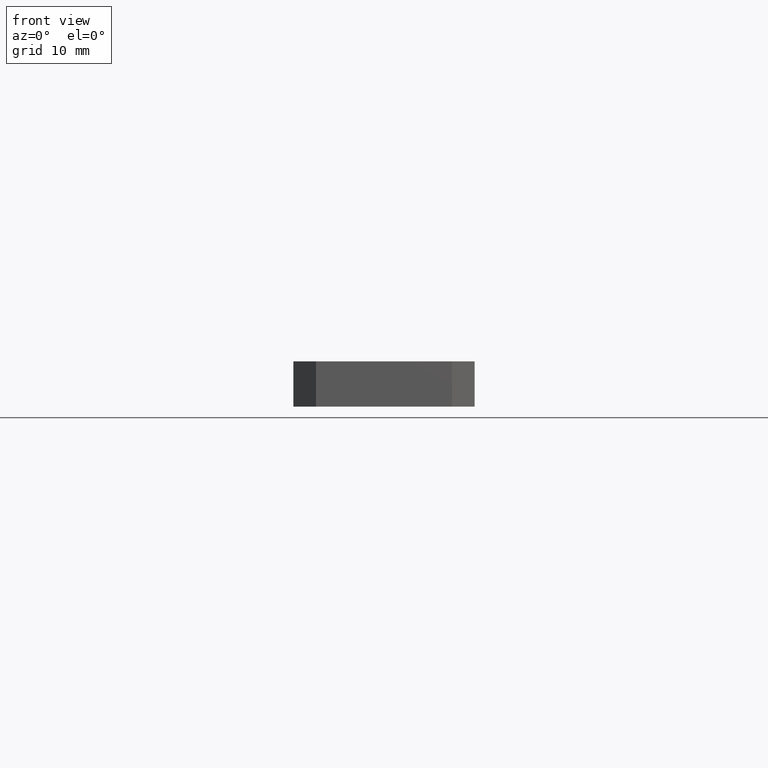
[diagram: clean part render]
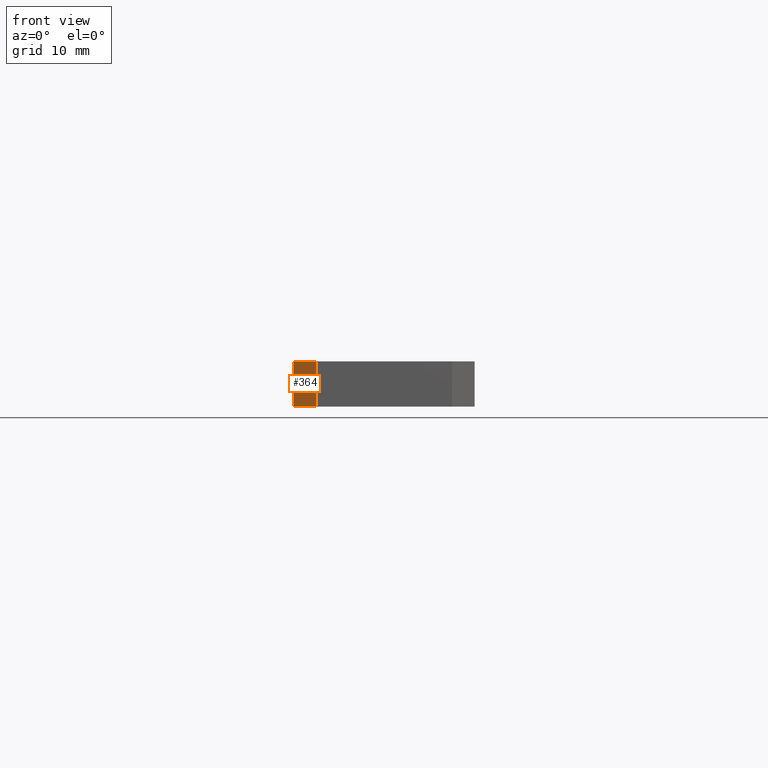
[diagram: same view with one face highlighted and labeled with its STEP entity id]
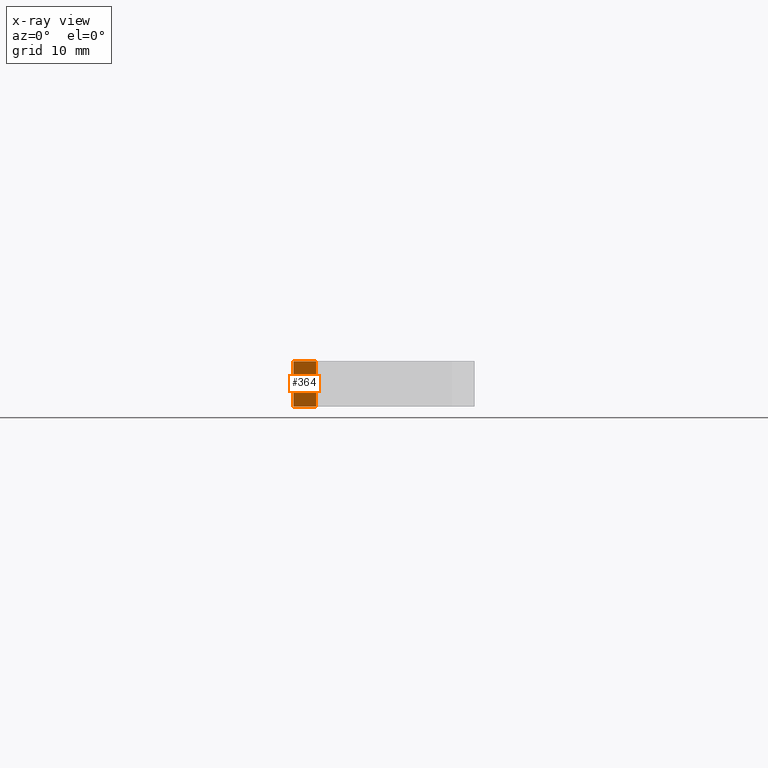
[diagram: x-ray of the same camera — body ghosted, the highlighted face saturated]
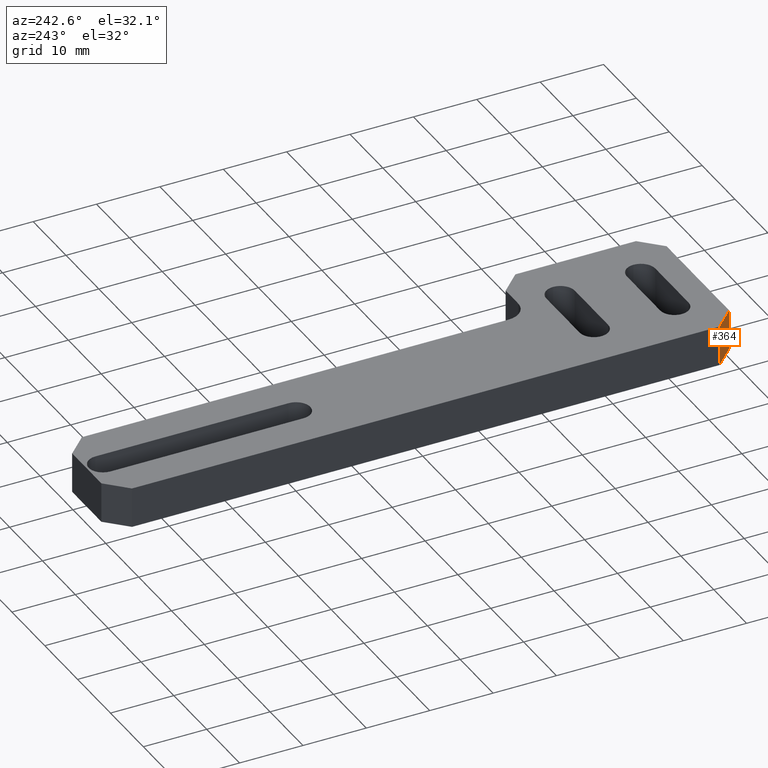
[diagram: same view with one face highlighted and labeled with its STEP entity id]
A machine part, front view. The second image highlights one B-rep face of the part: STEP entity #364.
The next image is the same camera in x-ray: the body ghosted, the highlighted face saturated — about 0% of this face is hidden behind the body in this view.
A second angle (auxiliary view) of the same face is appended — the face is thin or edge-on in the first view.
In plain terms, the highlighted planar face has unit normal (0.7071, 0.7071, -0).
Its self-contained STEP definition (entity closure, byte-faithful):
#6 = LINE ( 'NONE', #180, #9 ) ;
#9 = VECTOR ( 'NONE', #181, 39.37007874015748900 ) ;
#49 = LINE ( 'NONE', #231, #52 ) ;
#52 = VECTOR ( 'NONE', #232, 39.37007874015748100 ) ;
#85 = LINE ( 'NONE', #266, #88 ) ;
#88 = VECTOR ( 'NONE', #268, 39.37007874015748100 ) ;
#112 = LINE ( 'NONE', #307, #115 ) ;
#115 = VECTOR ( 'NONE', #308, 39.37007874015748900 ) ;
#180 = CARTESIAN_POINT ( 'NONE',  ( -3.532634997540461600E-019, 0.1249999999999999000, 0.0000000000000000000 ) ) ;
#181 = DIRECTION ( 'NONE',  ( 0.7071067811865490200, -0.7071067811865459100, -0.0000000000000000000 ) ) ;
#231 = CARTESIAN_POINT ( 'NONE',  ( -3.532634997540461600E-019, 0.1249999999999999000, -0.2500000000000000000 ) ) ;
#232 = DIRECTION ( 'NONE',  ( 0.0000000000000000000, 0.0000000000000000000, 1.000000000000000000 ) ) ;
#266 = CARTESIAN_POINT ( 'NONE',  ( 0.1250000000000004400, 0.0000000000000000000, -0.2500000000000000000 ) ) ;
#268 = DIRECTION ( 'NONE',  ( 0.0000000000000000000, 0.0000000000000000000, -1.000000000000000000 ) ) ;
#307 = CARTESIAN_POINT ( 'NONE',  ( 0.06249999999999993800, 0.06250000000000020800, -0.2500000000000000000 ) ) ;
#308 = DIRECTION ( 'NONE',  ( -0.7071067811865490200, 0.7071067811865459100, -0.0000000000000000000 ) ) ;
#364 = ADVANCED_FACE ( 'NONE', ( #840 ), #686, .F. ) ;
#447 = ORIENTED_EDGE ( 'NONE', *, *, #944, .F. ) ;
#448 = ORIENTED_EDGE ( 'NONE', *, *, #927, .F. ) ;
#449 = ORIENTED_EDGE ( 'NONE', *, *, #866, .F. ) ;
#450 = ORIENTED_EDGE ( 'NONE', *, *, #909, .F. ) ;
#488 = EDGE_LOOP ( 'NONE', ( #447, #448, #449, #450 ) ) ;
#572 = VERTEX_POINT ( 'NONE', #714 ) ;
#578 = VERTEX_POINT ( 'NONE', #720 ) ;
#591 = VERTEX_POINT ( 'NONE', #733 ) ;
#597 = VERTEX_POINT ( 'NONE', #739 ) ;
#679 = CARTESIAN_POINT ( 'NONE',  ( -3.532634997540461600E-019, 0.1249999999999999000, -0.2500000000000000000 ) ) ;
#686 = PLANE ( 'NONE',  #953 ) ;
#688 = DIRECTION ( 'NONE',  ( 0.7071067811865460200, 0.7071067811865491300, -0.0000000000000000000 ) ) ;
#689 = DIRECTION ( 'NONE',  ( -0.7071067811865490200, 0.7071067811865459100, 0.0000000000000000000 ) ) ;
#714 = CARTESIAN_POINT ( 'NONE',  ( -1.369456631829672300E-016, 0.1250000000000003100, 0.0000000000000000000 ) ) ;
#720 = CARTESIAN_POINT ( 'NONE',  ( -1.495745689033914100E-016, 0.1250000000000003100, -0.2500000000000000000 ) ) ;
#733 = CARTESIAN_POINT ( 'NONE',  ( 0.1250000000000004400, 0.0000000000000000000, 0.0000000000000000000 ) ) ;
#739 = CARTESIAN_POINT ( 'NONE',  ( 0.1250000000000007500, -1.067128122525102900E-016, -0.2500000000000000000 ) ) ;
#840 = FACE_OUTER_BOUND ( 'NONE', #488, .T. ) ;
#866 = EDGE_CURVE ( 'NONE', #572, #591, #6, .T. ) ;
#909 = EDGE_CURVE ( 'NONE', #578, #572, #49, .T. ) ;
#927 = EDGE_CURVE ( 'NONE', #591, #597, #85, .T. ) ;
#944 = EDGE_CURVE ( 'NONE', #597, #578, #112, .T. ) ;
#953 = AXIS2_PLACEMENT_3D ( 'NONE', #679, #688, #689 ) ;